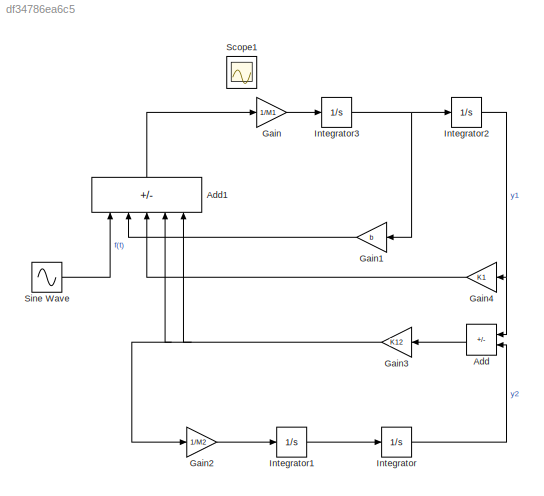
MODEL slx_df34786ea6c5
KIND model
CONFIG AbsTol = auto
CONFIG EnableMultiTasking = off
CONFIG FixedStep = auto
CONFIG MaxStep = 0.01
CONFIG MinStep = auto
CONFIG RelTol = 1e-3
CONFIG SampleTimeConstraint = Unconstrained
CONFIG Solver = VariableStepAuto
CONFIG SolverName = VariableStepAuto
CONFIG StartTime = 0.0
CONFIG StopTime = 10
BLOCK [Sum] Add
  IconShape = rectangular
  Inputs = +-
  NameLocation = top
  Ports = [2, 1]
BLOCK [Sum] Add1
  IconShape = rectangular
  Inputs = +--+-
  NameLocation = right
  Ports = [5, 1]
BLOCK [Gain] Gain
  Gain = 1/M1
BLOCK [Gain] Gain1
  Gain = b
  NameLocation = top
BLOCK [Gain] Gain2
  Gain = 1/M2
BLOCK [Gain] Gain3
  Gain = K12
  NameLocation = top
BLOCK [Gain] Gain4
  Gain = K1
  NameLocation = top
BLOCK [Integrator] Integrator
  Ports = [1, 1]
BLOCK [Integrator] Integrator1
  Ports = [1, 1]
BLOCK [Integrator] Integrator2
  Ports = [1, 1]
BLOCK [Integrator] Integrator3
  Ports = [1, 1]
BLOCK [Scope] Scope1
  Floating = off
  IOType = viewer
  NumInputPorts = 1
  Ports = []
  ScopeSpecificationString = Simulink.scopes.TimeScopeBlockCfg('CurrentConfiguration', extmgr.ConfigurationSet(extmgr.Configuration('Core','General UI',true),extmgr.Configuration('Core','Source UI',true),extmgr.Configuration('Sources','WiredSimulink',true,'DataLoggingVariableName','ScopeData1'),extmgr.Configuration('Visuals','Time Domain',true,'SerializedDisplays',{struct('MinYLimReal','-2.37764','MaxYLimReal','2.37764','YLab...<+2841ch>
BLOCK [Sin] Sine Wave
  Amplitude = 2
  Frequency = 2*pi*10
  Ports = [0, 1]
  SampleTime = 0
LINE Add1:1 -> Gain:1
LINE Add:1 -> Gain3:1
LINE Gain1:1 -> Add1:2
LINE Gain2:1 -> Integrator1:1
NET Gain3:1 -> Add1:4, Add1:5, Gain2:1
LINE Gain4:1 -> Add1:3
LINE Gain:1 -> Integrator3:1
LINE Integrator1:1 -> Integrator:1
NET Integrator2:1 -> Add:1, Gain4:1
NET Integrator3:1 -> Gain1:1, Integrator2:1
LINE Integrator:1 -> Add:2
LINE Sine Wave:1 -> Add1:1
note: NET lines group one-source signal fan-out (src -> all destinations, sorted); 1:1 wires keep LINE
